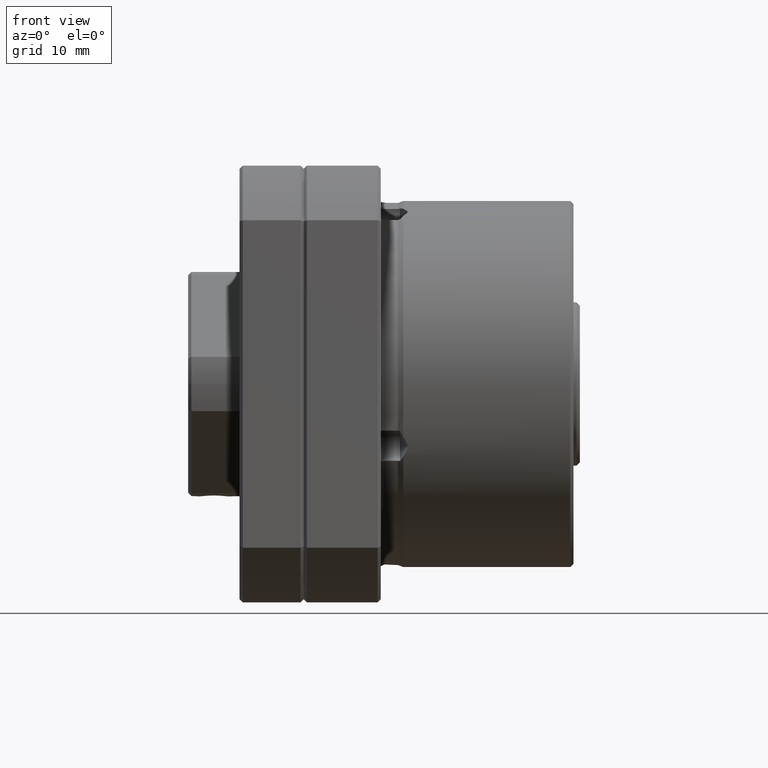
[diagram: clean part render]
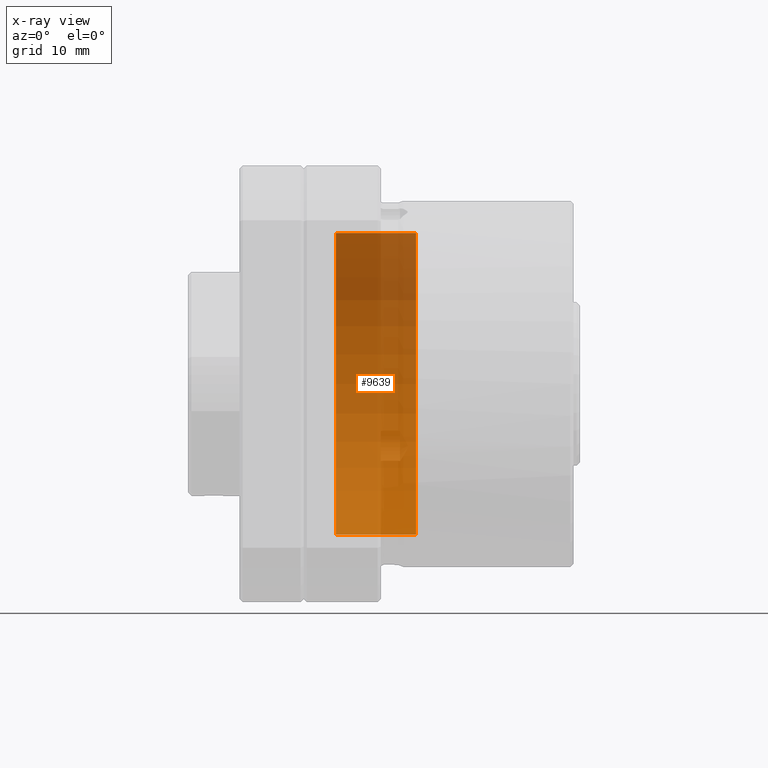
[diagram: x-ray — body ghosted, one internal face saturated and labeled with its STEP entity id]
A machine part, front view, then the same camera in x-ray: the body is ghosted and one INTERNAL B-rep face — a face not visible from any outside direction — is saturated and labeled: STEP entity #9639.
In plain terms, the highlighted cylindrical surface (partial cylindrical patch) has radius 23.5 mm, axis along (-1, 0, 0).
Its self-contained STEP definition (entity closure, byte-faithful):
#3127 = DIRECTION ( 'NONE',  ( -1.000000000000000000, 0.0000000000000000000, 0.0000000000000000000 ) ) ;
#3128 = VECTOR ( 'NONE', #3127, 1000.000000000000000 ) ;
#3129 = CARTESIAN_POINT ( 'NONE',  ( -57.36252019386107300, 5.218048215738235700E-015, 23.50000000000000700 ) ) ;
#3130 = LINE ( 'NONE', #3129, #3128 ) ;
#3131 = CARTESIAN_POINT ( 'NONE',  ( 5.000000000000004400, 5.218048215738235700E-015, 23.50000000000000700 ) ) ;
#3132 = DIRECTION ( 'NONE',  ( 0.0000000000000000000, 2.220446049250312300E-016, 1.000000000000000000 ) ) ;
#3133 = DIRECTION ( 'NONE',  ( -1.000000000000000000, 0.0000000000000000000, 0.0000000000000000000 ) ) ;
#3134 = CARTESIAN_POINT ( 'NONE',  ( 5.000000000000004400, 0.0000000000000000000, 0.0000000000000000000 ) ) ;
#3135 = AXIS2_PLACEMENT_3D ( 'NONE', #3134, #3133, #3132 ) ;
#3136 = CIRCLE ( 'NONE', #3135, 23.50000000000000700 ) ;
#3137 = CARTESIAN_POINT ( 'NONE',  ( 5.000000000000004400, -2.340223284255648400E-015, -23.50000000000000700 ) ) ;
#3138 = DIRECTION ( 'NONE',  ( -1.000000000000000000, 0.0000000000000000000, 0.0000000000000000000 ) ) ;
#3139 = VECTOR ( 'NONE', #3138, 1000.000000000000000 ) ;
#3140 = CARTESIAN_POINT ( 'NONE',  ( -57.36252019386107300, -2.340223284255648800E-015, -23.50000000000000700 ) ) ;
#3141 = LINE ( 'NONE', #3140, #3139 ) ;
#3159 = DIRECTION ( 'NONE',  ( 0.0000000000000000000, 2.220446049250312300E-016, 1.000000000000000000 ) ) ;
#3160 = DIRECTION ( 'NONE',  ( -1.000000000000000000, 0.0000000000000000000, 0.0000000000000000000 ) ) ;
#3161 = CARTESIAN_POINT ( 'NONE',  ( -57.36252019386107300, 0.0000000000000000000, 0.0000000000000000000 ) ) ;
#3162 = AXIS2_PLACEMENT_3D ( 'NONE', #3161, #3160, #3159 ) ;
#3163 = CIRCLE ( 'NONE', #3221, 23.50000000000000700 ) ;
#3164 = CYLINDRICAL_SURFACE ( 'NONE', #3162, 23.50000000000000700 ) ;
#3165 = FACE_OUTER_BOUND ( 'NONE', #9640, .T. ) ;
#3216 = CARTESIAN_POINT ( 'NONE',  ( 17.50000000000000700, -2.340223284255648400E-015, -23.50000000000000700 ) ) ;
#3217 = CARTESIAN_POINT ( 'NONE',  ( 17.50000000000000700, 5.218048215738235700E-015, 23.50000000000000700 ) ) ;
#3218 = DIRECTION ( 'NONE',  ( 0.0000000000000000000, 2.220446049250312300E-016, 1.000000000000000000 ) ) ;
#3219 = DIRECTION ( 'NONE',  ( -1.000000000000000000, 0.0000000000000000000, 0.0000000000000000000 ) ) ;
#3220 = CARTESIAN_POINT ( 'NONE',  ( 17.50000000000000700, 0.0000000000000000000, 0.0000000000000000000 ) ) ;
#3221 = AXIS2_PLACEMENT_3D ( 'NONE', #3220, #3219, #3218 ) ;
#9618 = ORIENTED_EDGE ( 'NONE', *, *, #9619, .T. ) ;
#9619 = EDGE_CURVE ( 'NONE', #9644, #9620, #3141, .T. ) ;
#9620 = VERTEX_POINT ( 'NONE', #3137 ) ;
#9621 = ORIENTED_EDGE ( 'NONE', *, *, #9622, .F. ) ;
#9622 = EDGE_CURVE ( 'NONE', #9623, #9620, #3136, .T. ) ;
#9623 = VERTEX_POINT ( 'NONE', #3131 ) ;
#9624 = ORIENTED_EDGE ( 'NONE', *, *, #9625, .F. ) ;
#9625 = EDGE_CURVE ( 'NONE', #9643, #9623, #3130, .T. ) ;
#9639 = ADVANCED_FACE ( 'NONE', ( #3165 ), #3164, .T. ) ;
#9640 = EDGE_LOOP ( 'NONE', ( #9641, #9618, #9621, #9624 ) ) ;
#9641 = ORIENTED_EDGE ( 'NONE', *, *, #9642, .T. ) ;
#9642 = EDGE_CURVE ( 'NONE', #9643, #9644, #3163, .T. ) ;
#9643 = VERTEX_POINT ( 'NONE', #3217 ) ;
#9644 = VERTEX_POINT ( 'NONE', #3216 ) ;